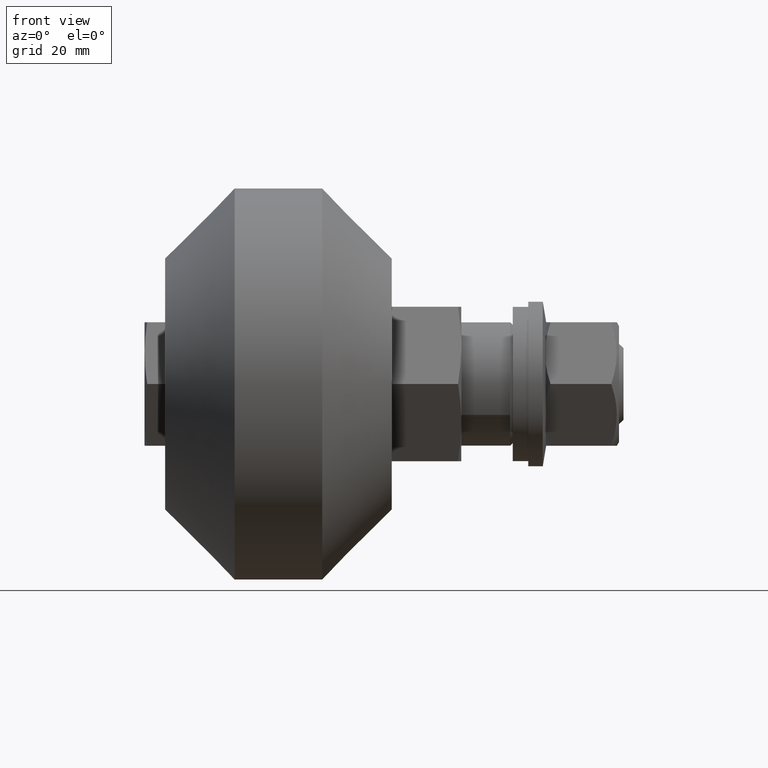
[diagram: clean part render]
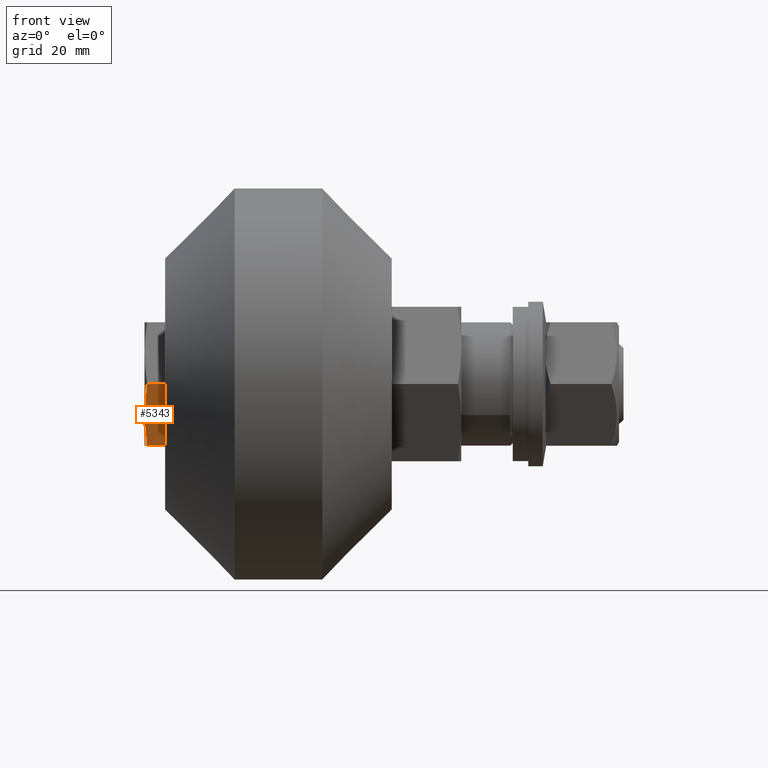
[diagram: same view with one face highlighted and labeled with its STEP entity id]
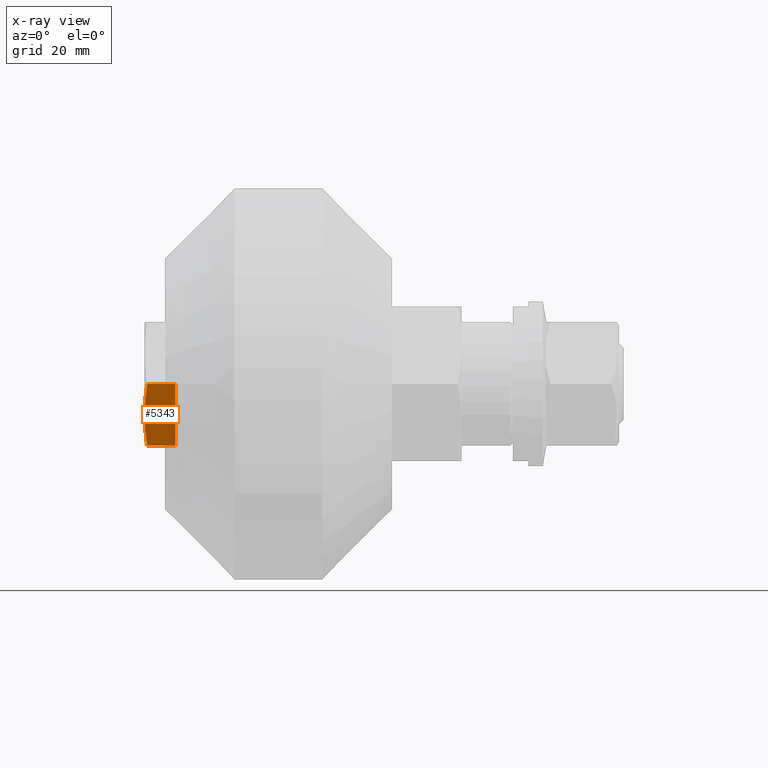
[diagram: x-ray of the same camera — body ghosted, the highlighted face saturated]
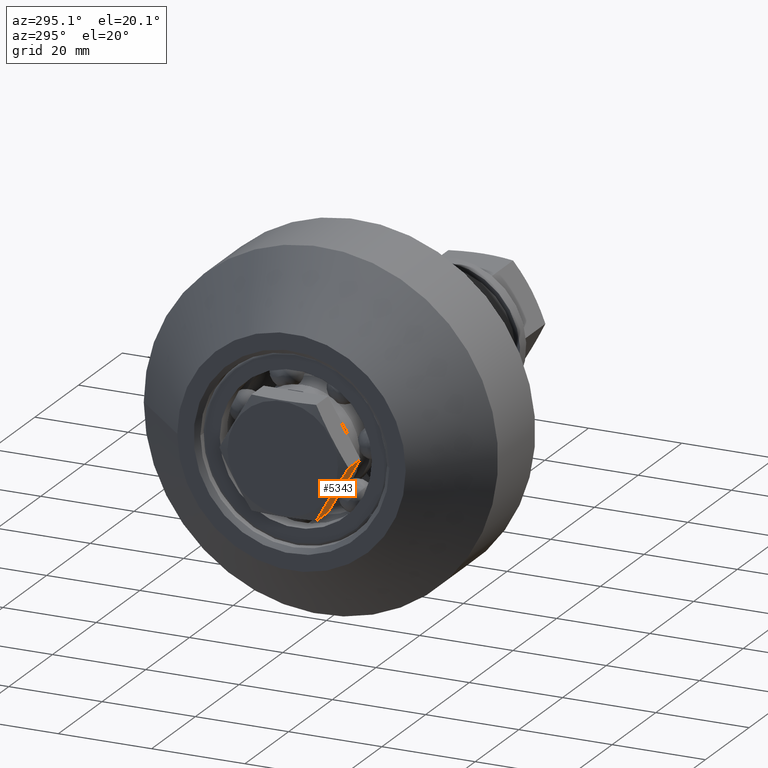
[diagram: same view with one face highlighted and labeled with its STEP entity id]
A machine part, front view. The second image highlights one B-rep face of the part: STEP entity #5343.
The next image is the same camera in x-ray: the body ghosted, the highlighted face saturated — about 4% of this face is hidden behind the body in this view.
A second angle (auxiliary view) of the same face is appended — the face is thin or edge-on in the first view.
In plain terms, the highlighted planar face has unit normal (0, -0.866, -0.5).
Its self-contained STEP definition (entity closure, byte-faithful):
#194=(
BOUNDED_CURVE()
B_SPLINE_CURVE(2,(#8062,#8063,#8064),.UNSPECIFIED.,.F.,.F.)
B_SPLINE_CURVE_WITH_KNOTS((3,3),(0.,1.38920738919512),.UNSPECIFIED.)
CURVE()
GEOMETRIC_REPRESENTATION_ITEM()
RATIONAL_B_SPLINE_CURVE((1.,1.15470053837925,1.))
REPRESENTATION_ITEM('')
);
#361=PLANE('',#5848);
#606=FACE_OUTER_BOUND('',#905,.T.);
#905=EDGE_LOOP('',(#3639,#3640,#3641,#3642));
#1238=LINE('',#8099,#1556);
#1242=LINE('',#8107,#1560);
#1243=LINE('',#8108,#1561);
#1556=VECTOR('',#6500,10.);
#1560=VECTOR('',#6508,10.);
#1561=VECTOR('',#6509,10.);
#2184=VERTEX_POINT('',#8060);
#2185=VERTEX_POINT('',#8061);
#2194=VERTEX_POINT('',#8098);
#2196=VERTEX_POINT('',#8106);
#2759=EDGE_CURVE('',#2184,#2185,#194,.T.);
#2772=EDGE_CURVE('',#2184,#2194,#1238,.T.);
#2776=EDGE_CURVE('',#2185,#2196,#1242,.T.);
#2777=EDGE_CURVE('',#2196,#2194,#1243,.T.);
#3639=ORIENTED_EDGE('',*,*,#2759,.T.);
#3640=ORIENTED_EDGE('',*,*,#2776,.T.);
#3641=ORIENTED_EDGE('',*,*,#2777,.T.);
#3642=ORIENTED_EDGE('',*,*,#2772,.F.);
#5343=ADVANCED_FACE('',(#606),#361,.T.);
#5848=AXIS2_PLACEMENT_3D('',#8105,#6506,#6507);
#6500=DIRECTION('',(1.,0.,0.));
#6506=DIRECTION('center_axis',(0.,-0.866025403784439,-0.5));
#6507=DIRECTION('ref_axis',(0.,0.5,-0.866025403784439));
#6508=DIRECTION('',(1.,0.,0.));
#6509=DIRECTION('',(0.,-0.5,0.866025403784439));
#8060=CARTESIAN_POINT('',(0.535898384862245,-13.856406460551,4.44089209850063E-15));
#8061=CARTESIAN_POINT('',(0.535898384862245,-6.92820323027551,-12.));
#8062=CARTESIAN_POINT('Ctrl Pts',(0.535898384862245,-13.856406460551,2.39315730072354E-15));
#8063=CARTESIAN_POINT('Ctrl Pts',(-0.392304845413264,-10.3923048454133,
-6.));
#8064=CARTESIAN_POINT('Ctrl Pts',(0.535898384862245,-6.92820323027551,-12.));
#8098=CARTESIAN_POINT('',(6.,-13.856406460551,-1.95868321560508E-15));
#8099=CARTESIAN_POINT('',(0.,-13.856406460551,-1.95868321560508E-15));
#8105=CARTESIAN_POINT('Origin',(0.,-13.856406460551,-1.95868321560508E-15));
#8106=CARTESIAN_POINT('',(6.,-6.92820323027551,-12.));
#8107=CARTESIAN_POINT('',(0.,-6.92820323027551,-12.));
#8108=CARTESIAN_POINT('',(6.,-12.1243556529821,-3.));